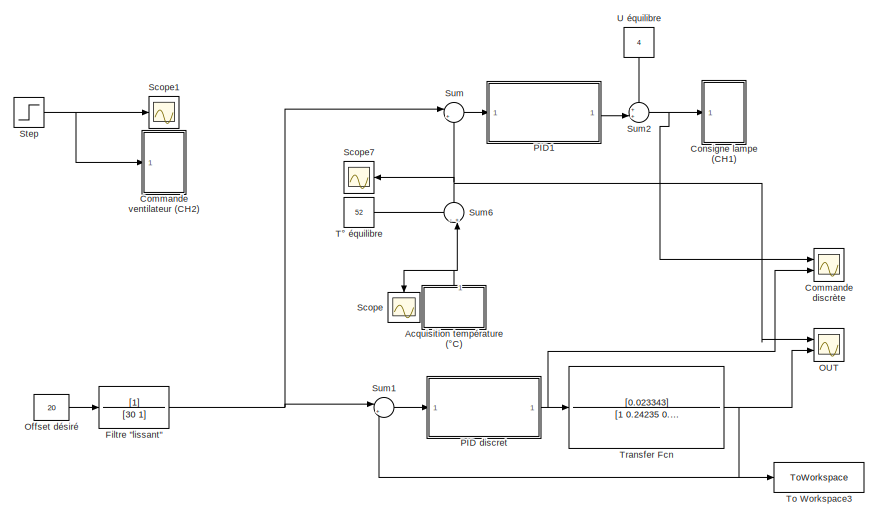
[diagram: root canvas - part 1/2, middle left region]
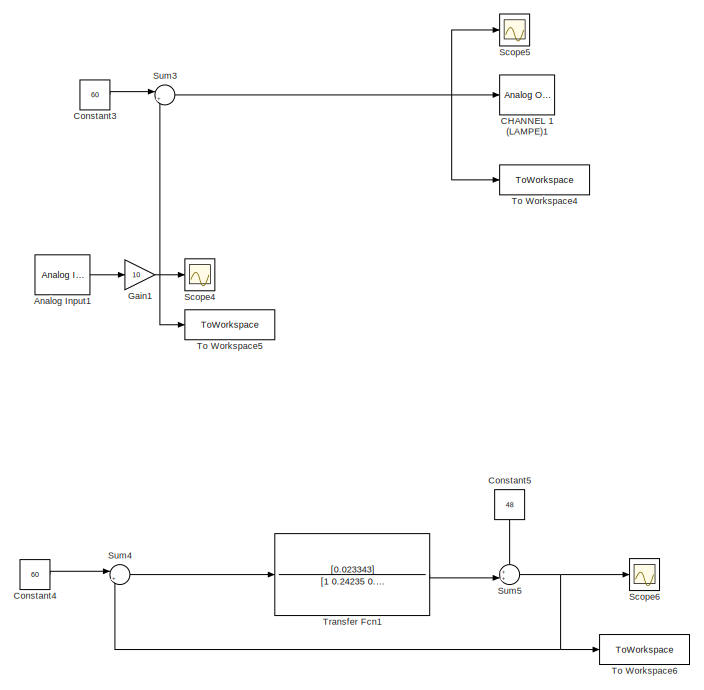
[diagram: root canvas - part 2/2, right side, full height]
MODEL slx_967e44152c5d
KIND model
CONFIG AbsTol = auto
CONFIG EnableMultiTasking = off
CONFIG FixedStep = auto
CONFIG MaxStep = auto
CONFIG MinStep = auto
CONFIG RelTol = 1e-3
CONFIG SampleTimeConstraint = Unconstrained
CONFIG Solver = VariableStepAuto
CONFIG SolverName = VariableStepAuto
CONFIG StartTime = 0.0
CONFIG StopTime = 500
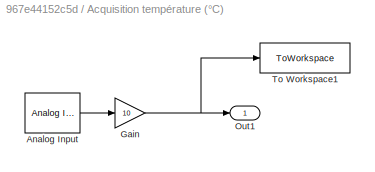
BLOCK [SubSystem] Acquisition température (°C)
  NameLocation = right
  Ports = [0, 1]
  RequestExecContextInheritance = off
BLOCK [Reference] Acquisition température (°C)/Analog Input  REF=sldrtlib/Analog Input
  AttributesFormatString = National Instruments\nPCI-6024E [auto]
  Ports = [0, 1]
  SourceBlock = sldrtlib/Analog Input
  SourceProductBaseCode = WT
  SourceType = Simulink Desktop Real-Time Analog Input
BLOCK [Gain] Acquisition température (°C)/Gain
  Gain = 10
BLOCK [Outport] Acquisition température (°C)/Out1
BLOCK [ToWorkspace] Acquisition température (°C)/To Workspace1
  FixptAsFi = on
  MaxDataPoints = inf
  Ports = [1]
  SampleTime = -1
  SaveFormat = Timeseries
  VariableName = reponse
BLOCK [Reference] Analog Input1  REF=sldrtlib/Analog Input
  AttributesFormatString = National Instruments\nPCI-6024E [auto]
  Commented = on
  Ports = [0, 1]
  SourceBlock = sldrtlib/Analog Input
  SourceProductBaseCode = WT
  SourceType = Simulink Desktop Real-Time Analog Input
BLOCK [Reference] CHANNEL 1 (LAMPE)1  REF=sldrtlib/Analog Output
  AttributesFormatString = National Instruments\nPCI-6024E [auto]
  Commented = on
  Ports = [1]
  SourceBlock = sldrtlib/Analog Output
  SourceProductBaseCode = WT
  SourceType = Simulink Desktop Real-Time Analog Output
BLOCK [Scope] Commande discrète
  Floating = off
  NumInputPorts = 2
  Ports = [2]
  ScopeSpecificationString = Simulink.scopes.TimeScopeBlockCfg('CurrentConfiguration', extmgr.ConfigurationSet(extmgr.Configuration('Core','General UI',true),extmgr.Configuration('Core','Source UI',true),extmgr.Configuration('Sources','WiredSimulink',true,'DataLoggingVariableName','ScopeData1'),extmgr.Configuration('Visuals','Time Domain',true,'SerializedDisplays',{struct('MinYLimReal','-1.14148','MaxYLimReal','10.27331','YLa...<+1436ch>
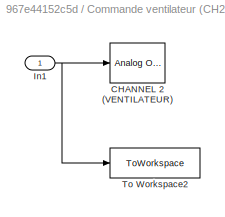
BLOCK [SubSystem] Commande ventilateur (CH2)
  Ports = [1]
  RequestExecContextInheritance = off
BLOCK [Reference] Commande ventilateur (CH2)/CHANNEL 2 (VENTILATEUR)  REF=sldrtlib/Analog Output
  AttributesFormatString = National Instruments\nPCI-6024E [auto]
  Ports = [1]
  SourceBlock = sldrtlib/Analog Output
  SourceProductBaseCode = WT
  SourceType = Simulink Desktop Real-Time Analog Output
BLOCK [Inport] Commande ventilateur (CH2)/In1
BLOCK [ToWorkspace] Commande ventilateur (CH2)/To Workspace2
  FixptAsFi = on
  MaxDataPoints = inf
  Ports = [1]
  SampleTime = -1
  SaveFormat = Timeseries
  VariableName = consigneventilateur
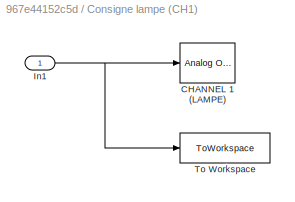
BLOCK [SubSystem] Consigne lampe (CH1)
  Ports = [1]
  RequestExecContextInheritance = off
BLOCK [Reference] Consigne lampe (CH1)/CHANNEL 1 (LAMPE)  REF=sldrtlib/Analog Output
  AttributesFormatString = National Instruments\nPCI-6024E [auto]
  Ports = [1]
  SourceBlock = sldrtlib/Analog Output
  SourceProductBaseCode = WT
  SourceType = Simulink Desktop Real-Time Analog Output
BLOCK [Inport] Consigne lampe (CH1)/In1
BLOCK [ToWorkspace] Consigne lampe (CH1)/To Workspace
  FixptAsFi = on
  MaxDataPoints = inf
  Ports = [1]
  SampleTime = -1
  SaveFormat = Timeseries
  VariableName = consignelampe
BLOCK [Constant] Constant3
  Commented = on
  Value = 60
BLOCK [Constant] Constant4
  Commented = on
  Value = 60
BLOCK [Constant] Constant5
  Commented = on
  NameLocation = left
  Value = 48
BLOCK [TransferFcn] Filtre "lissant"
  Denominator = [30 1]
BLOCK [Gain] Gain1
  Commented = on
  Gain = 10
BLOCK [Scope] OUT
  Floating = off
  NumInputPorts = 2
  Ports = [2]
  ScopeSpecificationString = Simulink.scopes.TimeScopeBlockCfg('CurrentConfiguration', extmgr.ConfigurationSet(extmgr.Configuration('Core','General UI',true),extmgr.Configuration('Core','Source UI',true),extmgr.Configuration('Sources','WiredSimulink',true,'DataLoggingVariableName','ScopeData2'),extmgr.Configuration('Visuals','Time Domain',true,'SerializedDisplays',{struct('MinYLimReal','-2.61427','MaxYLimReal','23.52845','YLa...<+1438ch>
BLOCK [Constant] Offset désiré
  Value = 20
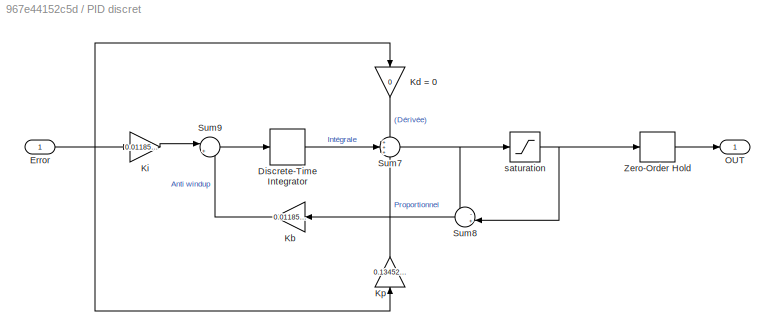
BLOCK [SubSystem] PID discret
  Ports = [1, 1]
  RequestExecContextInheritance = off
BLOCK [DiscreteIntegrator] PID discret/Discrete-Time Integrator
  ICPrevOutput = DiscIntNeverNeededParam
  ICPrevScaledInput = DiscIntNeverNeededParam
  InitialConditionSetting = Auto
  Ports = [1, 1]
  SampleTime = 5
BLOCK [Inport] PID discret/Error
BLOCK [Gain] PID discret/Kb
  Gain = 0.0118548404136242
  NameLocation = top
BLOCK [Gain] PID discret/Kd = 0
  Commented = on
  Gain = 0
  NameLocation = left
BLOCK [Gain] PID discret/Ki
  Gain = 0.0118548404136242
BLOCK [Gain] PID discret/Kp
  Gain = 0.134524809636123
  NameLocation = right
BLOCK [Outport] PID discret/OUT
BLOCK [Sum] PID discret/Sum7
  Inputs = +++
  Ports = [3, 1]
BLOCK [Sum] PID discret/Sum8
  Inputs = -+|
  NameLocation = top
  Ports = [2, 1]
BLOCK [Sum] PID discret/Sum9
  Inputs = |++
  Ports = [2, 1]
BLOCK [ZeroOrderHold] PID discret/Zero-Order Hold
  SampleTime = 5
BLOCK [Saturate] PID discret/saturation
  LowerLimit = 0
  UpperLimit = 10
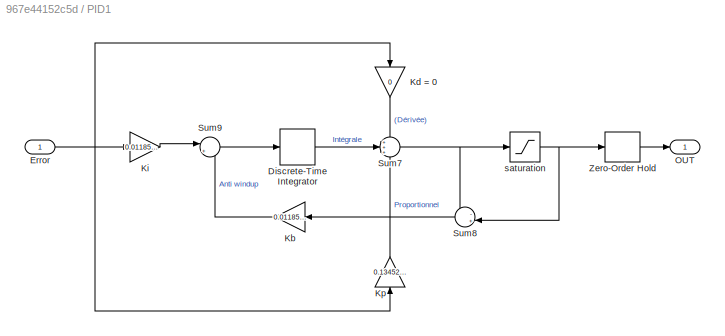
BLOCK [SubSystem] PID1
  Ports = [1, 1]
  RequestExecContextInheritance = off
BLOCK [DiscreteIntegrator] PID1/Discrete-Time Integrator
  ICPrevOutput = DiscIntNeverNeededParam
  ICPrevScaledInput = DiscIntNeverNeededParam
  InitialConditionSetting = Auto
  Ports = [1, 1]
  SampleTime = 5
BLOCK [Inport] PID1/Error
BLOCK [Gain] PID1/Kb
  Gain = 0.0118548404136242
  NameLocation = top
BLOCK [Gain] PID1/Kd = 0
  Commented = on
  Gain = 0
  NameLocation = left
BLOCK [Gain] PID1/Ki
  Gain = 0.0118548404136242
BLOCK [Gain] PID1/Kp
  Gain = 0.134524809636123
  NameLocation = right
BLOCK [Outport] PID1/OUT
BLOCK [Sum] PID1/Sum7
  Inputs = +++
  Ports = [3, 1]
BLOCK [Sum] PID1/Sum8
  Inputs = -+|
  NameLocation = top
  Ports = [2, 1]
BLOCK [Sum] PID1/Sum9
  Inputs = |++
  Ports = [2, 1]
BLOCK [ZeroOrderHold] PID1/Zero-Order Hold
  SampleTime = 5
BLOCK [Saturate] PID1/saturation
  LowerLimit = 0
  UpperLimit = 6
BLOCK [Scope] Scope
  Floating = off
  NameLocation = left
  NumInputPorts = 1
  Ports = [1]
  ScopeSpecificationString = Simulink.scopes.TimeScopeBlockCfg('CurrentConfiguration', extmgr.ConfigurationSet(extmgr.Configuration('Core','General UI',true),extmgr.Configuration('Core','Source UI',true),extmgr.Configuration('Sources','WiredSimulink',true),extmgr.Configuration('Visuals','Time Domain',true,'SerializedDisplays',{struct('MinYLimReal','50.66528','MaxYLimReal','75.26245','YLabelReal','','MinYLimMag','50.66528','Ma...<+1383ch>
BLOCK [Scope] Scope1
  Floating = off
  NumInputPorts = 1
  Ports = [1]
  ScopeSpecificationString = Simulink.scopes.TimeScopeBlockCfg('CurrentConfiguration', extmgr.ConfigurationSet(extmgr.Configuration('Core','General UI',true),extmgr.Configuration('Core','Source UI',true),extmgr.Configuration('Sources','WiredSimulink',true,'DataLoggingVariableName','ScopeData1'),extmgr.Configuration('Visuals','Time Domain',true,'SerializedDisplays',{struct('MinYLimReal','-1.25','MaxYLimReal','11.25','YLabelRea...<+1376ch>
BLOCK [Scope] Scope4
  Commented = on
  Floating = off
  NumInputPorts = 1
  Ports = [1]
  ScopeSpecificationString = Simulink.scopes.TimeScopeBlockCfg('CurrentConfiguration', extmgr.ConfigurationSet(extmgr.Configuration('Core','General UI',true),extmgr.Configuration('Core','Source UI',true),extmgr.Configuration('Sources','WiredSimulink',true,'DataLoggingVariableName','ScopeData1'),extmgr.Configuration('Visuals','Time Domain',true,'SerializedDisplays',{struct('MinYLimReal','46.97876','MaxYLimReal','56.68335','YLa...<+1425ch>
BLOCK [Scope] Scope5
  Commented = on
  Floating = off
  NumInputPorts = 1
  Ports = [1]
  ScopeSpecificationString = Simulink.scopes.TimeScopeBlockCfg('CurrentConfiguration', extmgr.ConfigurationSet(extmgr.Configuration('Core','General UI',true),extmgr.Configuration('Core','Source UI',true),extmgr.Configuration('Sources','WiredSimulink',true,'DataLoggingVariableName','ScopeData2'),extmgr.Configuration('Visuals','Time Domain',true,'SerializedDisplays',{struct('MinYLimReal','6.99707','MaxYLimReal','12.6123','YLabe...<+1506ch>
BLOCK [Scope] Scope6
  Commented = on
  Floating = off
  NumInputPorts = 1
  Ports = [1]
  ScopeSpecificationString = Simulink.scopes.TimeScopeBlockCfg('CurrentConfiguration', extmgr.ConfigurationSet(extmgr.Configuration('Core','General UI',true),extmgr.Configuration('Core','Source UI',true),extmgr.Configuration('Sources','WiredSimulink',true,'DataLoggingVariableName','ScopeData3'),extmgr.Configuration('Visuals','Time Domain',true,'SerializedDisplays',{struct('MinYLimReal','46.81971','MaxYLimReal','58.6226','YLab...<+1421ch>
BLOCK [Scope] Scope7
  Floating = off
  NameLocation = top
  NumInputPorts = 1
  Ports = [1]
  ScopeSpecificationString = Simulink.scopes.TimeScopeBlockCfg('CurrentConfiguration', extmgr.ConfigurationSet(extmgr.Configuration('Core','General UI',true),extmgr.Configuration('Core','Source UI',true),extmgr.Configuration('Sources','WiredSimulink',true,'DataLoggingVariableName','ScopeData4'),extmgr.Configuration('Visuals','Time Domain',true,'SerializedDisplays',{struct('MinYLimReal','-1.33472','MaxYLimReal','23.26245','YLa...<+1514ch>
BLOCK [Step] Step
  SampleTime = 0
BLOCK [Sum] Sum
  Inputs = |+-
  Ports = [2, 1]
BLOCK [Sum] Sum1
  Inputs = |+-
  Ports = [2, 1]
BLOCK [Sum] Sum2
  Inputs = ++|
  Ports = [2, 1]
BLOCK [Sum] Sum3
  Commented = on
  Inputs = |+-
  Ports = [2, 1]
BLOCK [Sum] Sum4
  Commented = on
  Inputs = |+-
  Ports = [2, 1]
BLOCK [Sum] Sum5
  Commented = on
  Inputs = ++|
  Ports = [2, 1]
BLOCK [Sum] Sum6
  Inputs = -+|
  NameLocation = right
  Ports = [2, 1]
BLOCK [ToWorkspace] To Workspace3
  FixptAsFi = on
  MaxDataPoints = inf
  Ports = [1]
  SampleTime = -1
  SaveFormat = Timeseries
  VariableName = simPID
BLOCK [ToWorkspace] To Workspace4
  Commented = on
  FixptAsFi = on
  MaxDataPoints = inf
  Ports = [1]
  SampleTime = -1
  SaveFormat = Timeseries
  VariableName = consignelampe1
BLOCK [ToWorkspace] To Workspace5
  Commented = on
  FixptAsFi = on
  MaxDataPoints = inf
  Ports = [1]
  SampleTime = -1
  SaveFormat = Timeseries
  VariableName = reponse1
BLOCK [ToWorkspace] To Workspace6
  Commented = on
  FixptAsFi = on
  MaxDataPoints = inf
  Ports = [1]
  SampleTime = -1
  SaveFormat = Timeseries
  VariableName = simPID1
BLOCK [TransferFcn] Transfer Fcn
  Denominator = [1 0.24235 0.007857]
  Numerator = [0.023343]
BLOCK [TransferFcn] Transfer Fcn1
  Commented = on
  Denominator = [1 0.24235 0.007857]
  Numerator = [0.023343]
BLOCK [Constant] T° équilibre
  Value = 52
BLOCK [Constant] U équilibre
  NameLocation = left
  Value = 4
LINE Acquisition température (°C)/Analog Input:1 -> Acquisition température (°C)/Gain:1
NET Acquisition température (°C)/Gain:1 -> Acquisition température (°C)/Out1:1, Acquisition température (°C)/To Workspace1:1
NET Acquisition température (°C):1 -> Scope:1, Sum6:2
LINE Analog Input1:1 -> Gain1:1
NET Commande ventilateur (CH2)/In1:1 -> Commande ventilateur (CH2)/CHANNEL 2 (VENTILATEUR):1, Commande ventilateur (CH2)/To Workspace2:1
NET Consigne lampe (CH1)/In1:1 -> Consigne lampe (CH1)/CHANNEL 1 (LAMPE):1, Consigne lampe (CH1)/To Workspace:1
LINE Constant3:1 -> Sum3:1
LINE Constant4:1 -> Sum4:1
LINE Constant5:1 -> Sum5:1
NET Filtre "lissant":1 -> Sum1:1, Sum:1
NET Gain1:1 -> Scope4:1, Sum3:2, To Workspace5:1
LINE Offset désiré:1 -> Filtre "lissant":1
LINE PID discret/Discrete-Time Integrator:1 -> PID discret/Sum7:2
NET PID discret/Error:1 -> PID discret/Kd = 0:1, PID discret/Ki:1, PID discret/Kp:1
LINE PID discret/Kb:1 -> PID discret/Sum9:2
LINE PID discret/Kd = 0:1 -> PID discret/Sum7:1
LINE PID discret/Ki:1 -> PID discret/Sum9:1
LINE PID discret/Kp:1 -> PID discret/Sum7:3
NET PID discret/Sum7:1 -> PID discret/Sum8:1, PID discret/saturation:1
LINE PID discret/Sum8:1 -> PID discret/Kb:1
LINE PID discret/Sum9:1 -> PID discret/Discrete-Time Integrator:1
LINE PID discret/Zero-Order Hold:1 -> PID discret/OUT:1
NET PID discret/saturation:1 -> PID discret/Sum8:2, PID discret/Zero-Order Hold:1
NET PID discret:1 -> Commande discrète:2, Transfer Fcn:1
LINE PID1/Discrete-Time Integrator:1 -> PID1/Sum7:2
NET PID1/Error:1 -> PID1/Kd = 0:1, PID1/Ki:1, PID1/Kp:1
LINE PID1/Kb:1 -> PID1/Sum9:2
LINE PID1/Kd = 0:1 -> PID1/Sum7:1
LINE PID1/Ki:1 -> PID1/Sum9:1
LINE PID1/Kp:1 -> PID1/Sum7:3
NET PID1/Sum7:1 -> PID1/Sum8:1, PID1/saturation:1
LINE PID1/Sum8:1 -> PID1/Kb:1
LINE PID1/Sum9:1 -> PID1/Discrete-Time Integrator:1
LINE PID1/Zero-Order Hold:1 -> PID1/OUT:1
NET PID1/saturation:1 -> PID1/Sum8:2, PID1/Zero-Order Hold:1
LINE PID1:1 -> Sum2:2
NET Step:1 -> Commande ventilateur (CH2):1, Scope1:1
LINE Sum1:1 -> PID discret:1
NET Sum2:1 -> Commande discrète:1, Consigne lampe (CH1):1
NET Sum3:1 -> CHANNEL 1 (LAMPE)1:1, Scope5:1, To Workspace4:1
LINE Sum4:1 -> Transfer Fcn1:1
NET Sum5:1 -> Scope6:1, Sum4:2, To Workspace6:1
NET Sum6:1 -> OUT:1, Scope7:1, Sum:2
LINE Sum:1 -> PID1:1
LINE Transfer Fcn1:1 -> Sum5:2
NET Transfer Fcn:1 -> OUT:2, Sum1:2, To Workspace3:1
LINE T° équilibre:1 -> Sum6:1
LINE U équilibre:1 -> Sum2:1
note: NET lines group one-source signal fan-out (src -> all destinations, sorted); 1:1 wires keep LINE
